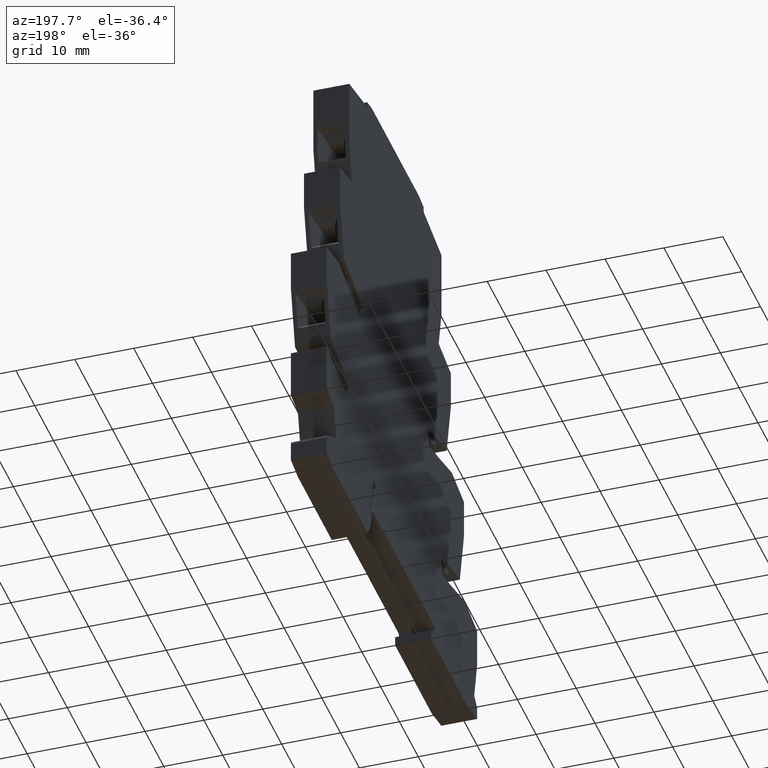
[diagram: clean part render]
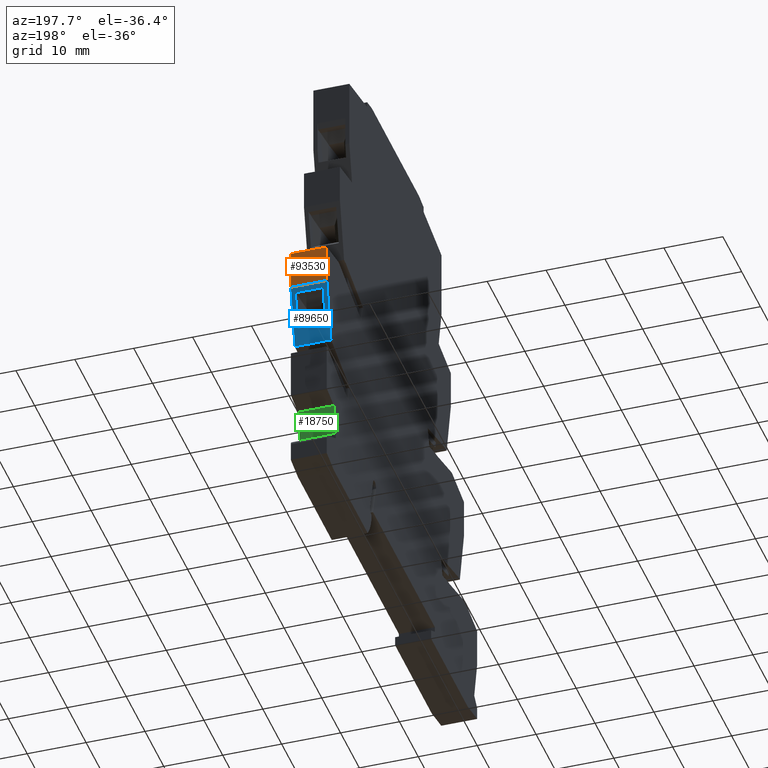
[diagram: same view with three faces highlighted in distinct colors, each labeled with its STEP entity id]
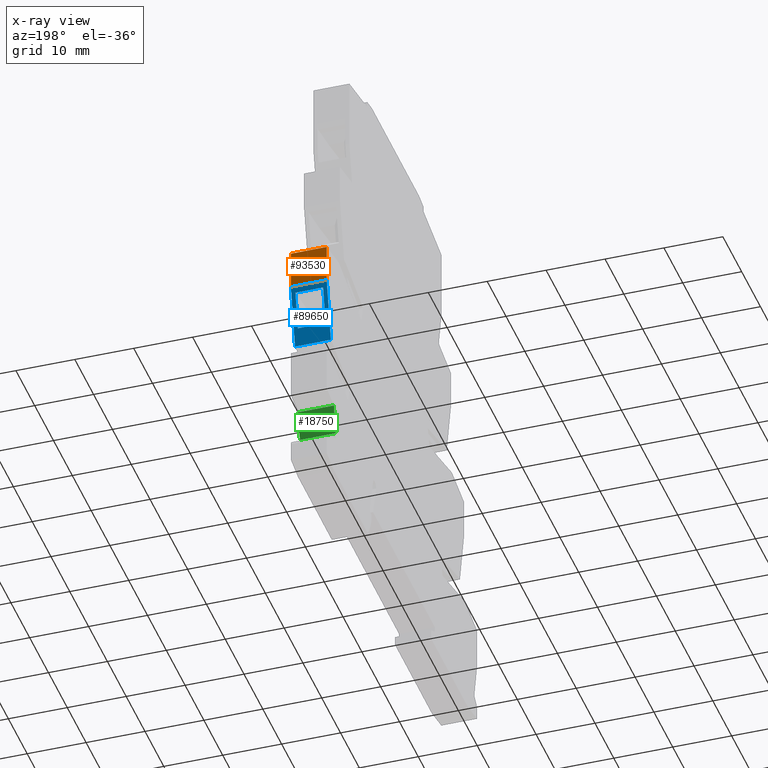
[diagram: x-ray of the same camera — body ghosted, the three highlighted faces saturated]
A machine part, auxiliary view with three faces highlighted in distinct colors.
The next image is the same camera in x-ray (body ghosted, the three faces saturated) — at least one of them is partly hidden behind the body in this view.
Their STEP definitions:

[orange] entity #93530 — the highlighted planar face has unit normal (0, -1, 0).
#5860=CARTESIAN_POINT('',(32.3989506710355,39.8995198550947,
-6.10000000000324));
#5870=VERTEX_POINT('',#5860);
#5900=CARTESIAN_POINT('',(32.3989506721292,3.13314794290093,
-6.10000000000753));
#5910=DIRECTION('',(-1.06602284719999E-13,-1.,-5.76150921084779E-16));
#5920=VECTOR('',#5910,1.);
#5930=LINE('',#5900,#5920);
#5940=CARTESIAN_POINT('',(32.3989506720842,46.633147942911,
-6.10000000000324));
#5950=VERTEX_POINT('',#5940);
#5960=EDGE_CURVE('',#5950,#5870,#5930,.T.);
#9210=CARTESIAN_POINT('',(32.3989506721338,46.6331479429004,
-3.24007487506606E-12));
#9220=VERTEX_POINT('',#9210);
#9250=CARTESIAN_POINT('',(32.3989506721292,3.13314794290093,
-3.06510372638513E-12));
#9260=DIRECTION('',(1.06602284719999E-13,1.,4.99765413869878E-16));
#9270=VECTOR('',#9260,1.);
#9280=LINE('',#9250,#9270);
#9290=CARTESIAN_POINT('',(32.3989506721331,39.8995198602585,
-3.24362758874486E-12));
#9300=VERTEX_POINT('',#9290);
#9310=EDGE_CURVE('',#9300,#9220,#9280,.T.);
#86900=CARTESIAN_POINT('',(32.3989506721338,46.6331479429004,
-0.100000000003056));
#86910=DIRECTION('',(1.31707713815764E-15,-4.99765413870018E-16,1.));
#86920=VECTOR('',#86910,1.);
#86930=LINE('',#86900,#86920);
#86940=EDGE_CURVE('',#5950,#9220,#86930,.T.);
#89570=CARTESIAN_POINT('',(32.3989506721331,39.8995198602585,
-0.10000000000306));
#89580=DIRECTION('',(1.31707713815764E-15,-4.99765413870018E-16,1.));
#89590=VECTOR('',#89580,1.);
#89600=LINE('',#89570,#89590);
#89610=EDGE_CURVE('',#5870,#9300,#89600,.T.);
#93420=CARTESIAN_POINT('',(32.3989506721331,39.8995198602587,
-13.9000000000029));
#93430=DIRECTION('',(-1.,1.06602284719999E-13,1.3170771381577E-15));
#93440=DIRECTION('',(-1.06602284719999E-13,-1.,-4.99765413869878E-16));
#93450=AXIS2_PLACEMENT_3D('',#93420,#93430,#93440);
#93460=PLANE('',#93450);
#93470=ORIENTED_EDGE('',*,*,#5960,.F.);
#93480=ORIENTED_EDGE('',*,*,#89610,.F.);
#93490=ORIENTED_EDGE('',*,*,#9310,.F.);
#93500=ORIENTED_EDGE('',*,*,#86940,.T.);
#93510=EDGE_LOOP('',(#93500,#93490,#93480,#93470));
#93520=FACE_OUTER_BOUND('',#93510,.T.);
#93530=ADVANCED_FACE('',(#93520),#93460,.F.);

[blue] entity #89650 — the highlighted planar face has unit normal (0, -0.9781, 0.2079).
#5780=CARTESIAN_POINT('',(30.1948571514967,29.5300751189706,
-6.10000000000325));
#5790=VERTEX_POINT('',#5780);
#5820=CARTESIAN_POINT('',(24.5840170722953,3.13314794290177,
-6.10000000000752));
#5830=DIRECTION('',(-0.207911690817841,-0.978147600733788,
-2.93687849938804E-16));
#5840=VECTOR('',#5830,1.);
#5850=LINE('',#5820,#5840);
#5860=CARTESIAN_POINT('',(32.3989506710355,39.8995198550947,
-6.10000000000324));
#5870=VERTEX_POINT('',#5860);
#5880=EDGE_CURVE('',#5870,#5790,#5850,.T.);
#9290=CARTESIAN_POINT('',(32.3989506721331,39.8995198602585,
-3.24362758874486E-12));
#9300=VERTEX_POINT('',#9290);
#9330=CARTESIAN_POINT('',(24.5840170722953,3.13314794290176,
-3.05799829902753E-12));
#9340=DIRECTION('',(0.207911690817841,0.978147600733788,
2.65932274323175E-16));
#9350=VECTOR('',#9340,1.);
#9360=LINE('',#9330,#9350);
#9370=CARTESIAN_POINT('',(30.1948571514967,29.5300751189706,
-3.24718030242366E-12));
#9380=VERTEX_POINT('',#9370);
#9390=EDGE_CURVE('',#9380,#9300,#9360,.T.);
#89100=CARTESIAN_POINT('',(30.2298588632846,29.6947452261311,
-13.9000000000029));
#89110=DIRECTION('',(-0.978147600733788,0.207911690817841,
1.39220291488022E-15));
#89120=DIRECTION('',(-0.207911690817841,-0.978147600733788,
-2.15008605774808E-16));
#89130=AXIS2_PLACEMENT_3D('',#89100,#89110,#89120);
#89140=PLANE('',#89130);
#89150=CARTESIAN_POINT('',(32.1674372938387,38.810335049988,
-0.10000000000306));
#89160=DIRECTION('',(1.72025120039403E-15,1.39701941868724E-15,1.));
#89170=VECTOR('',#89160,1.);
#89180=LINE('',#89150,#89170);
#89190=CARTESIAN_POINT('',(32.1674372938387,38.810335049988,
-5.40000000000304));
#89200=VERTEX_POINT('',#89190);
#89210=CARTESIAN_POINT('',(32.1674372938387,38.810335049988,
-0.700000000003279));
#89220=VERTEX_POINT('',#89210);
#89230=EDGE_CURVE('',#89200,#89220,#89180,.T.);
#89240=ORIENTED_EDGE('',*,*,#89230,.F.);
#89250=CARTESIAN_POINT('',(24.5840170722953,3.13314794290176,
-0.700000000003216));
#89260=DIRECTION('',(0.207911690817841,0.978147600733788,
-1.70471359438648E-15));
#89270=VECTOR('',#89260,1.);
#89280=LINE('',#89250,#89270);
#89290=CARTESIAN_POINT('',(30.844612557603,32.586933966333,
-0.700000000003269));
#89300=VERTEX_POINT('',#89290);
#89310=EDGE_CURVE('',#89300,#89220,#89280,.T.);
#89320=ORIENTED_EDGE('',*,*,#89310,.T.);
#89330=CARTESIAN_POINT('',(30.844612557603,32.586933966333,
-0.100000000003061));
#89340=DIRECTION('',(1.67893986125826E-15,1.20266484872629E-15,1.));
#89350=VECTOR('',#89340,1.);
#89360=LINE('',#89330,#89350);
#89370=CARTESIAN_POINT('',(30.8446125577876,32.5869339672018,
-5.40000000000303));
#89380=VERTEX_POINT('',#89370);
#89390=EDGE_CURVE('',#89380,#89300,#89360,.T.);
#89400=ORIENTED_EDGE('',*,*,#89390,.T.);
#89410=CARTESIAN_POINT('',(24.5840170722953,3.13314794290177,
-5.40000000000298));
#89420=DIRECTION('',(0.207911690817841,0.978147600733788,
-1.73246917000211E-15));
#89430=VECTOR('',#89420,1.);
#89440=LINE('',#89410,#89430);
#89450=EDGE_CURVE('',#89380,#89200,#89440,.T.);
#89460=ORIENTED_EDGE('',*,*,#89450,.F.);
#89470=EDGE_LOOP('',(#89460,#89400,#89320,#89240));
#89480=FACE_BOUND('',#89470,.T.);
#89490=ORIENTED_EDGE('',*,*,#5880,.F.);
#89500=CARTESIAN_POINT('',(30.1948571514967,29.5300751189706,
-3.24718030242366E-12));
#89510=DIRECTION('',(-1.07214782058017E-15,4.99765413869992E-16,-1.));
#89520=VECTOR('',#89510,1.);
#89530=LINE('',#89500,#89520);
#89540=EDGE_CURVE('',#9380,#5790,#89530,.T.);
#89550=ORIENTED_EDGE('',*,*,#89540,.T.);
#89560=ORIENTED_EDGE('',*,*,#9390,.F.);
#89570=CARTESIAN_POINT('',(32.3989506721331,39.8995198602585,
-0.10000000000306));
#89580=DIRECTION('',(1.31707713815764E-15,-4.99765413870018E-16,1.));
#89590=VECTOR('',#89580,1.);
#89600=LINE('',#89570,#89590);
#89610=EDGE_CURVE('',#5870,#9300,#89600,.T.);
#89620=ORIENTED_EDGE('',*,*,#89610,.T.);
#89630=EDGE_LOOP('',(#89620,#89560,#89550,#89490));
#89640=FACE_OUTER_BOUND('',#89630,.T.);
#89650=ADVANCED_FACE('',(#89480,#89640),#89140,.F.);

[green] entity #18750 — the highlighted planar face has unit normal (0, -0.9785, 0.206).
#5060=CARTESIAN_POINT('',(27.5971836341222,12.5914569500231,
-6.10000000000325));
#5070=VERTEX_POINT('',#5060);
#5100=CARTESIAN_POINT('',(25.6059606852535,3.13314794290166,
-6.10000000000752));
#5110=DIRECTION('',(-0.206010481049947,-0.978549784986727,
-3.09805013435353E-16));
#5120=VECTOR('',#5110,1.);
#5130=LINE('',#5100,#5120);
#5140=CARTESIAN_POINT('',(28.6173002801197,17.4370110185085,
-6.10000000000325));
#5150=VERTEX_POINT('',#5140);
#5160=EDGE_CURVE('',#5150,#5070,#5130,.T.);
#10010=CARTESIAN_POINT('',(28.6173002801197,17.4370110185085,
-3.25250937294186E-12));
#10020=VERTEX_POINT('',#10010);
#10050=CARTESIAN_POINT('',(25.6059606852535,3.13314794290165,
-3.05799829902753E-12));
#10060=DIRECTION('',(0.206010481049947,0.978549784986727,
2.6817165001191E-16));
#10070=VECTOR('',#10060,1.);
#10080=LINE('',#10050,#10070);
#10090=CARTESIAN_POINT('',(27.5971836341223,12.5914569500231,
-3.25428572978126E-12));
#10100=VERTEX_POINT('',#10090);
#10110=EDGE_CURVE('',#10100,#10020,#10080,.T.);
#18410=CARTESIAN_POINT('',(28.6173002801197,17.4370110185085,
-0.100000000003067));
#18420=DIRECTION('',(1.31707713815764E-15,-4.99765413870018E-16,1.));
#18430=VECTOR('',#18420,1.);
#18440=LINE('',#18410,#18430);
#18450=EDGE_CURVE('',#5150,#10020,#18440,.T.);
#18590=CARTESIAN_POINT('',(27.4063960526463,11.6852159380127,
-13.9000000000029));
#18600=DIRECTION('',(-0.978549784986727,0.206010481049947,
1.39178246367858E-15));
#18610=DIRECTION('',(-0.206010481049947,-0.978549784986727,
-2.17713643474565E-16));
#18620=AXIS2_PLACEMENT_3D('',#18590,#18600,#18610);
#18630=PLANE('',#18620);
#18640=ORIENTED_EDGE('',*,*,#5160,.F.);
#18650=CARTESIAN_POINT('',(27.5971836341223,12.5914569500231,
-6.90000000000326));
#18660=DIRECTION('',(-1.0706624490232E-15,1.67023518725798E-15,-1.));
#18670=VECTOR('',#18660,1.);
#18680=LINE('',#18650,#18670);
#18690=EDGE_CURVE('',#10100,#5070,#18680,.T.);
#18700=ORIENTED_EDGE('',*,*,#18690,.T.);
#18710=ORIENTED_EDGE('',*,*,#10110,.F.);
#18720=ORIENTED_EDGE('',*,*,#18450,.T.);
#18730=EDGE_LOOP('',(#18720,#18710,#18700,#18640));
#18740=FACE_OUTER_BOUND('',#18730,.T.);
#18750=ADVANCED_FACE('',(#18740),#18630,.F.);